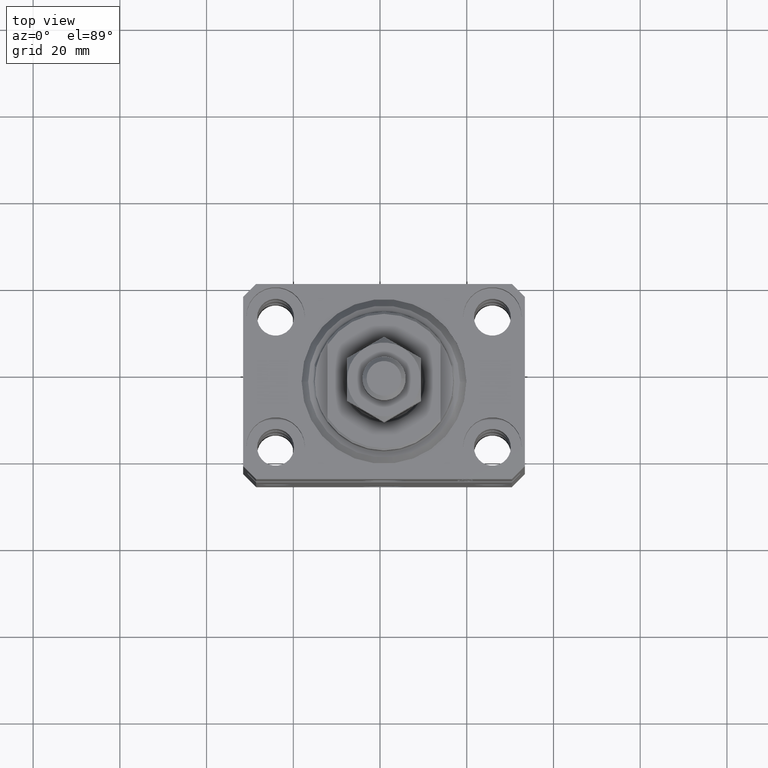
[diagram: clean part render]
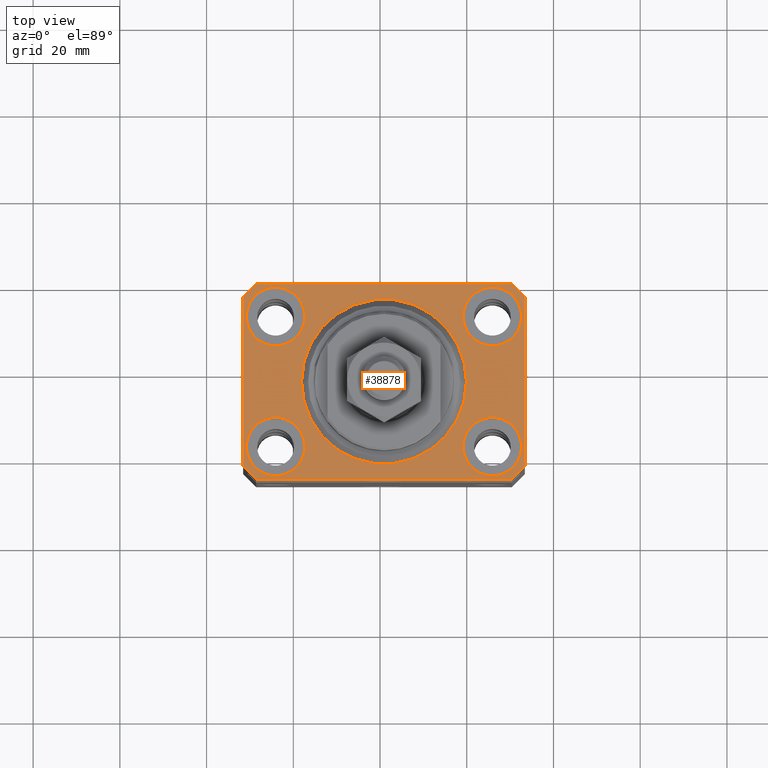
[diagram: same view with one face highlighted and labeled with its STEP entity id]
A machine part, top view. The second image highlights one B-rep face of the part: STEP entity #38878.
In plain terms, the highlighted planar face has unit normal (0, 0, 1).
Its self-contained STEP definition (entity closure, byte-faithful):
#251 = CARTESIAN_POINT ( 'NONE',  ( 29.49999999999650413, -22.49999999999949196, 0.000000000000000000 ) ) ;
#864 = DIRECTION ( 'NONE',  ( 1.334402673828349134E-14, 1.000000000000000000, 0.000000000000000000 ) ) ;
#920 = AXIS2_PLACEMENT_3D ( 'NONE', #7489, #21311, #22004 ) ;
#1087 = DIRECTION ( 'NONE',  ( 0.000000000000000000, 0.000000000000000000, 1.000000000000000000 ) ) ;
#1273 = CARTESIAN_POINT ( 'NONE',  ( 25.00000000000000355, -15.00000000000000000, 0.000000000000000000 ) ) ;
#1495 = LINE ( 'NONE', #28364, #28860 ) ;
#2440 = CARTESIAN_POINT ( 'NONE',  ( -18.24999999995846167, -15.00000000000000000, 0.000000000000000000 ) ) ;
#2973 = CARTESIAN_POINT ( 'NONE',  ( 29.49999999999707967, 22.49999999999951328, 0.000000000000000000 ) ) ;
#3073 = FACE_BOUND ( 'NONE', #13281, .T. ) ;
#3256 = VERTEX_POINT ( 'NONE', #25701 ) ;
#3675 = CARTESIAN_POINT ( 'NONE',  ( 18.25000000004154543, 15.00000000000000888, 0.000000000000000000 ) ) ;
#3762 = CARTESIAN_POINT ( 'NONE',  ( -25.00000000000000355, 15.00000000000000000, 0.000000000000000000 ) ) ;
#4376 = DIRECTION ( 'NONE',  ( 0.000000000000000000, 0.000000000000000000, 1.000000000000000000 ) ) ;
#4700 = CIRCLE ( 'NONE', #31298, 6.749999999977465137 ) ;
#4829 = CIRCLE ( 'NONE', #29896, 19.00000000000000000 ) ;
#4925 = AXIS2_PLACEMENT_3D ( 'NONE', #1273, #15803, #30310 ) ;
#5140 = AXIS2_PLACEMENT_3D ( 'NONE', #3762, #10440, #28751 ) ;
#5311 = DIRECTION ( 'NONE',  ( 0.000000000000000000, 0.000000000000000000, 1.000000000000000000 ) ) ;
#5369 = CARTESIAN_POINT ( 'NONE',  ( 32.49999999999651124, -19.49999999999949196, 0.000000000000000000 ) ) ;
#5536 = ORIENTED_EDGE ( 'NONE', *, *, #10774, .T. ) ;
#6048 = CARTESIAN_POINT ( 'NONE',  ( -32.49999999999650413, 19.49999999999949907, 0.000000000000000000 ) ) ;
#6411 = LINE ( 'NONE', #7357, #26850 ) ;
#6459 = DIRECTION ( 'NONE',  ( 1.000000000000000000, 1.176083712526788232E-16, 0.000000000000000000 ) ) ;
#6765 = DIRECTION ( 'NONE',  ( -1.000000000000000000, -2.352167425053553784E-16, 0.000000000000000000 ) ) ;
#6867 = PLANE ( 'NONE',  #16543 ) ;
#7357 = CARTESIAN_POINT ( 'NONE',  ( -32.49999999999650413, -19.49999999999949907, 0.000000000000000000 ) ) ;
#7489 = CARTESIAN_POINT ( 'NONE',  ( 0.000000000000000000, 0.000000000000000000, 0.000000000000000000 ) ) ;
#7989 = CIRCLE ( 'NONE', #4925, 6.749999999977465137 ) ;
#8086 = AXIS2_PLACEMENT_3D ( 'NONE', #37020, #1087, #26310 ) ;
#8183 = CARTESIAN_POINT ( 'NONE',  ( 24.99999999999999645, 15.00000000000000888, 0.000000000000000000 ) ) ;
#8901 = CARTESIAN_POINT ( 'NONE',  ( -18.24999999997747224, 15.00000000000000000, 0.000000000000000000 ) ) ;
#9062 = VECTOR ( 'NONE', #39279, 1000.000000000000000 ) ;
#9796 = LINE ( 'NONE', #27417, #9062 ) ;
#10203 = FACE_BOUND ( 'NONE', #44978, .T. ) ;
#10440 = DIRECTION ( 'NONE',  ( 0.000000000000000000, 0.000000000000000000, 1.000000000000000000 ) ) ;
#10647 = CARTESIAN_POINT ( 'NONE',  ( -31.75000000004154899, -15.00000000000000000, 0.000000000000000000 ) ) ;
#10774 = EDGE_CURVE ( 'NONE', #18659, #15148, #9796, .T. ) ;
#11141 = EDGE_CURVE ( 'NONE', #13620, #34701, #1495, .T. ) ;
#11525 = EDGE_LOOP ( 'NONE', ( #21076, #11615 ) ) ;
#11615 = ORIENTED_EDGE ( 'NONE', *, *, #17635, .F. ) ;
#11907 = ORIENTED_EDGE ( 'NONE', *, *, #22860, .F. ) ;
#12001 = EDGE_CURVE ( 'NONE', #15148, #33448, #43638, .T. ) ;
#12333 = CARTESIAN_POINT ( 'NONE',  ( 29.49999999999650413, -22.49999999999949196, 0.000000000000000000 ) ) ;
#12535 = ORIENTED_EDGE ( 'NONE', *, *, #17668, .T. ) ;
#12634 = CIRCLE ( 'NONE', #8086, 6.750000000041541881 ) ;
#12785 = VERTEX_POINT ( 'NONE', #3675 ) ;
#13281 = EDGE_LOOP ( 'NONE', ( #46952, #37504 ) ) ;
#13419 = DIRECTION ( 'NONE',  ( 0.000000000000000000, -1.000000000000000000, 0.000000000000000000 ) ) ;
#13522 = CARTESIAN_POINT ( 'NONE',  ( 32.49999999999651124, -19.49999999999949196, 0.000000000000000000 ) ) ;
#13620 = VERTEX_POINT ( 'NONE', #16107 ) ;
#13871 = AXIS2_PLACEMENT_3D ( 'NONE', #38756, #46128, #20679 ) ;
#14224 = VECTOR ( 'NONE', #29276, 1000.000000000000000 ) ;
#14628 = VERTEX_POINT ( 'NONE', #29033 ) ;
#14813 = ORIENTED_EDGE ( 'NONE', *, *, #36201, .T. ) ;
#15148 = VERTEX_POINT ( 'NONE', #20836 ) ;
#15269 = VERTEX_POINT ( 'NONE', #8901 ) ;
#15334 = DIRECTION ( 'NONE',  ( 1.000000000000000000, 0.000000000000000000, 0.000000000000000000 ) ) ;
#15370 = CARTESIAN_POINT ( 'NONE',  ( 19.00000000000000000, 0.000000000000000000, 0.000000000000000000 ) ) ;
#15723 = ORIENTED_EDGE ( 'NONE', *, *, #25015, .F. ) ;
#15803 = DIRECTION ( 'NONE',  ( 0.000000000000000000, 0.000000000000000000, 1.000000000000000000 ) ) ;
#16107 = CARTESIAN_POINT ( 'NONE',  ( -29.49999999999650413, -22.49999999999949907, 0.000000000000000000 ) ) ;
#16543 = AXIS2_PLACEMENT_3D ( 'NONE', #40381, #39456, #25646 ) ;
#17238 = LINE ( 'NONE', #6048, #30073 ) ;
#17306 = CARTESIAN_POINT ( 'NONE',  ( 24.99999999999999645, 15.00000000000000888, 0.000000000000000000 ) ) ;
#17350 = FACE_BOUND ( 'NONE', #11525, .T. ) ;
#17635 = EDGE_CURVE ( 'NONE', #35110, #37807, #4700, .T. ) ;
#17661 = CARTESIAN_POINT ( 'NONE',  ( -32.49999999999650413, -19.49999999999949907, 0.000000000000000000 ) ) ;
#17668 = EDGE_CURVE ( 'NONE', #33448, #27340, #40963, .T. ) ;
#18423 = CIRCLE ( 'NONE', #920, 19.00000000000000000 ) ;
#18659 = VERTEX_POINT ( 'NONE', #38407 ) ;
#18676 = EDGE_LOOP ( 'NONE', ( #28120, #12535, #14813, #45006, #46479, #24503, #41093, #5536 ) ) ;
#19199 = AXIS2_PLACEMENT_3D ( 'NONE', #19396, #22960, #40795 ) ;
#19396 = CARTESIAN_POINT ( 'NONE',  ( -25.00000000000000355, 15.00000000000000000, 0.000000000000000000 ) ) ;
#19829 = CARTESIAN_POINT ( 'NONE',  ( 0.000000000000000000, 0.000000000000000000, 0.000000000000000000 ) ) ;
#20679 = DIRECTION ( 'NONE',  ( 1.000000000000000000, 0.000000000000000000, 0.000000000000000000 ) ) ;
#20836 = CARTESIAN_POINT ( 'NONE',  ( 29.49999999999707967, 22.49999999999951328, 0.000000000000000000 ) ) ;
#20879 = EDGE_CURVE ( 'NONE', #12785, #35740, #32930, .T. ) ;
#20935 = DIRECTION ( 'NONE',  ( 0.7071067811865474617, -0.7071067811865474617, 0.000000000000000000 ) ) ;
#21076 = ORIENTED_EDGE ( 'NONE', *, *, #28743, .F. ) ;
#21311 = DIRECTION ( 'NONE',  ( 0.000000000000000000, 0.000000000000000000, 1.000000000000000000 ) ) ;
#21785 = EDGE_CURVE ( 'NONE', #36993, #14628, #18423, .T. ) ;
#22004 = DIRECTION ( 'NONE',  ( 1.000000000000000000, 0.000000000000000000, 0.000000000000000000 ) ) ;
#22565 = EDGE_CURVE ( 'NONE', #38188, #34806, #35894, .T. ) ;
#22860 = EDGE_CURVE ( 'NONE', #3256, #15269, #41981, .T. ) ;
#22960 = DIRECTION ( 'NONE',  ( 0.000000000000000000, 0.000000000000000000, 1.000000000000000000 ) ) ;
#24350 = EDGE_CURVE ( 'NONE', #33641, #13620, #6411, .T. ) ;
#24503 = ORIENTED_EDGE ( 'NONE', *, *, #42024, .T. ) ;
#24867 = AXIS2_PLACEMENT_3D ( 'NONE', #17306, #42505, #35381 ) ;
#25015 = EDGE_CURVE ( 'NONE', #14628, #36993, #4829, .T. ) ;
#25128 = DIRECTION ( 'NONE',  ( 0.000000000000000000, 0.000000000000000000, 1.000000000000000000 ) ) ;
#25646 = DIRECTION ( 'NONE',  ( 1.000000000000000000, 0.000000000000000000, -0.000000000000000000 ) ) ;
#25667 = CIRCLE ( 'NONE', #5140, 6.750000000022533087 ) ;
#25701 = CARTESIAN_POINT ( 'NONE',  ( -31.75000000002253842, 15.00000000000000000, 0.000000000000000000 ) ) ;
#26310 = DIRECTION ( 'NONE',  ( 1.000000000000000000, 0.000000000000000000, 0.000000000000000000 ) ) ;
#26795 = VERTEX_POINT ( 'NONE', #13522 ) ;
#26850 = VECTOR ( 'NONE', #20935, 1000.000000000000114 ) ;
#27340 = VERTEX_POINT ( 'NONE', #35017 ) ;
#27417 = CARTESIAN_POINT ( 'NONE',  ( 32.49999999999702993, 19.49999999999945999, 0.000000000000000000 ) ) ;
#27950 = CARTESIAN_POINT ( 'NONE',  ( 18.25000000002253842, -15.00000000000000000, 0.000000000000000000 ) ) ;
#28120 = ORIENTED_EDGE ( 'NONE', *, *, #12001, .T. ) ;
#28283 = FACE_BOUND ( 'NONE', #36534, .T. ) ;
#28364 = CARTESIAN_POINT ( 'NONE',  ( -29.49999999999650413, -22.49999999999949907, 0.000000000000000000 ) ) ;
#28371 = ORIENTED_EDGE ( 'NONE', *, *, #40826, .F. ) ;
#28743 = EDGE_CURVE ( 'NONE', #37807, #35110, #7989, .T. ) ;
#28751 = DIRECTION ( 'NONE',  ( 1.000000000000000000, 0.000000000000000000, 0.000000000000000000 ) ) ;
#28753 = FACE_OUTER_BOUND ( 'NONE', #18676, .T. ) ;
#28860 = VECTOR ( 'NONE', #6459, 1000.000000000000000 ) ;
#29033 = CARTESIAN_POINT ( 'NONE',  ( -19.00000000000000000, 2.326828918379970970E-15, 0.000000000000000000 ) ) ;
#29276 = DIRECTION ( 'NONE',  ( 0.7071067811865483499, 0.7071067811865466846, 0.000000000000000000 ) ) ;
#29833 = DIRECTION ( 'NONE',  ( 1.000000000000000000, 0.000000000000000000, 0.000000000000000000 ) ) ;
#29896 = AXIS2_PLACEMENT_3D ( 'NONE', #19829, #5311, #29833 ) ;
#30073 = VECTOR ( 'NONE', #13419, 1000.000000000000000 ) ;
#30310 = DIRECTION ( 'NONE',  ( 1.000000000000000000, 0.000000000000000000, 0.000000000000000000 ) ) ;
#31123 = EDGE_LOOP ( 'NONE', ( #38930, #15723 ) ) ;
#31298 = AXIS2_PLACEMENT_3D ( 'NONE', #44538, #25128, #40491 ) ;
#31744 = VECTOR ( 'NONE', #864, 1000.000000000000000 ) ;
#32650 = EDGE_CURVE ( 'NONE', #34806, #38188, #12634, .T. ) ;
#32854 = LINE ( 'NONE', #251, #14224 ) ;
#32930 = CIRCLE ( 'NONE', #36730, 6.749999999958452790 ) ;
#33448 = VERTEX_POINT ( 'NONE', #44314 ) ;
#33609 = DIRECTION ( 'NONE',  ( -0.7071067811865474617, -0.7071067811865474617, 0.000000000000000000 ) ) ;
#33641 = VERTEX_POINT ( 'NONE', #17661 ) ;
#33735 = CARTESIAN_POINT ( 'NONE',  ( 31.74999999995845101, 15.00000000000000888, 0.000000000000000000 ) ) ;
#34701 = VERTEX_POINT ( 'NONE', #12333 ) ;
#34806 = VERTEX_POINT ( 'NONE', #10647 ) ;
#35017 = CARTESIAN_POINT ( 'NONE',  ( -32.49999999999650413, 19.49999999999949907, 0.000000000000000000 ) ) ;
#35110 = VERTEX_POINT ( 'NONE', #27950 ) ;
#35381 = DIRECTION ( 'NONE',  ( 1.000000000000000000, 0.000000000000000000, 0.000000000000000000 ) ) ;
#35740 = VERTEX_POINT ( 'NONE', #33735 ) ;
#35894 = CIRCLE ( 'NONE', #13871, 6.750000000041541881 ) ;
#35905 = FACE_BOUND ( 'NONE', #31123, .T. ) ;
#36201 = EDGE_CURVE ( 'NONE', #27340, #33641, #17238, .T. ) ;
#36534 = EDGE_LOOP ( 'NONE', ( #45529, #38079 ) ) ;
#36730 = AXIS2_PLACEMENT_3D ( 'NONE', #8183, #4376, #15334 ) ;
#36993 = VERTEX_POINT ( 'NONE', #15370 ) ;
#37020 = CARTESIAN_POINT ( 'NONE',  ( -25.00000000000000355, -15.00000000000000000, 0.000000000000000000 ) ) ;
#37504 = ORIENTED_EDGE ( 'NONE', *, *, #32650, .F. ) ;
#37807 = VERTEX_POINT ( 'NONE', #45096 ) ;
#37813 = CIRCLE ( 'NONE', #24867, 6.749999999958452790 ) ;
#38079 = ORIENTED_EDGE ( 'NONE', *, *, #20879, .F. ) ;
#38188 = VERTEX_POINT ( 'NONE', #2440 ) ;
#38407 = CARTESIAN_POINT ( 'NONE',  ( 32.49999999999702993, 19.49999999999945999, 0.000000000000000000 ) ) ;
#38756 = CARTESIAN_POINT ( 'NONE',  ( -25.00000000000000355, -15.00000000000000000, 0.000000000000000000 ) ) ;
#38878 = ADVANCED_FACE ( 'NONE', ( #3073, #17350, #28283, #10203, #35905, #28753 ), #6867, .T. ) ;
#38930 = ORIENTED_EDGE ( 'NONE', *, *, #21785, .F. ) ;
#39279 = DIRECTION ( 'NONE',  ( -0.7071067811865352493, 0.7071067811865597852, 0.000000000000000000 ) ) ;
#39456 = DIRECTION ( 'NONE',  ( 0.000000000000000000, 0.000000000000000000, 1.000000000000000000 ) ) ;
#40381 = CARTESIAN_POINT ( 'NONE',  ( 0.000000000000000000, 0.000000000000000000, 0.000000000000000000 ) ) ;
#40491 = DIRECTION ( 'NONE',  ( 1.000000000000000000, 0.000000000000000000, 0.000000000000000000 ) ) ;
#40795 = DIRECTION ( 'NONE',  ( 1.000000000000000000, 0.000000000000000000, 0.000000000000000000 ) ) ;
#40826 = EDGE_CURVE ( 'NONE', #15269, #3256, #25667, .T. ) ;
#40963 = LINE ( 'NONE', #46769, #45723 ) ;
#41093 = ORIENTED_EDGE ( 'NONE', *, *, #43541, .T. ) ;
#41517 = LINE ( 'NONE', #5369, #31744 ) ;
#41981 = CIRCLE ( 'NONE', #19199, 6.750000000022533087 ) ;
#42024 = EDGE_CURVE ( 'NONE', #34701, #26795, #32854, .T. ) ;
#42505 = DIRECTION ( 'NONE',  ( 0.000000000000000000, 0.000000000000000000, 1.000000000000000000 ) ) ;
#43169 = EDGE_CURVE ( 'NONE', #35740, #12785, #37813, .T. ) ;
#43301 = VECTOR ( 'NONE', #6765, 1000.000000000000000 ) ;
#43541 = EDGE_CURVE ( 'NONE', #26795, #18659, #41517, .T. ) ;
#43638 = LINE ( 'NONE', #2973, #43301 ) ;
#44314 = CARTESIAN_POINT ( 'NONE',  ( -29.49999999999650413, 22.49999999999949907, 0.000000000000000000 ) ) ;
#44538 = CARTESIAN_POINT ( 'NONE',  ( 25.00000000000000355, -15.00000000000000000, 0.000000000000000000 ) ) ;
#44978 = EDGE_LOOP ( 'NONE', ( #28371, #11907 ) ) ;
#45006 = ORIENTED_EDGE ( 'NONE', *, *, #24350, .T. ) ;
#45096 = CARTESIAN_POINT ( 'NONE',  ( 31.74999999997746869, -15.00000000000000000, 0.000000000000000000 ) ) ;
#45529 = ORIENTED_EDGE ( 'NONE', *, *, #43169, .F. ) ;
#45723 = VECTOR ( 'NONE', #33609, 1000.000000000000114 ) ;
#46128 = DIRECTION ( 'NONE',  ( 0.000000000000000000, 0.000000000000000000, 1.000000000000000000 ) ) ;
#46479 = ORIENTED_EDGE ( 'NONE', *, *, #11141, .T. ) ;
#46769 = CARTESIAN_POINT ( 'NONE',  ( -29.49999999999650413, 22.49999999999949907, 0.000000000000000000 ) ) ;
#46952 = ORIENTED_EDGE ( 'NONE', *, *, #22565, .F. ) ;